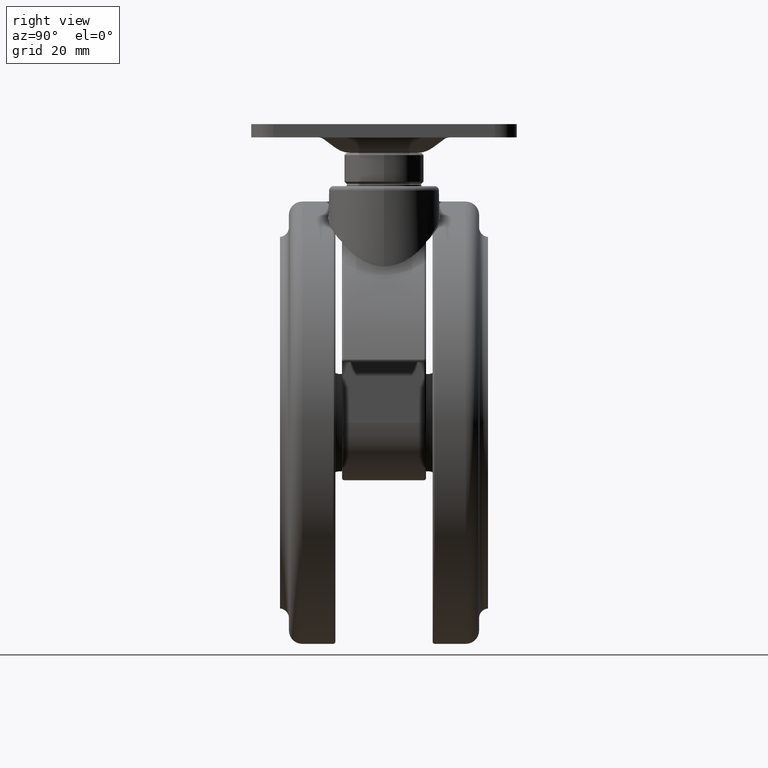
[diagram: clean part render]
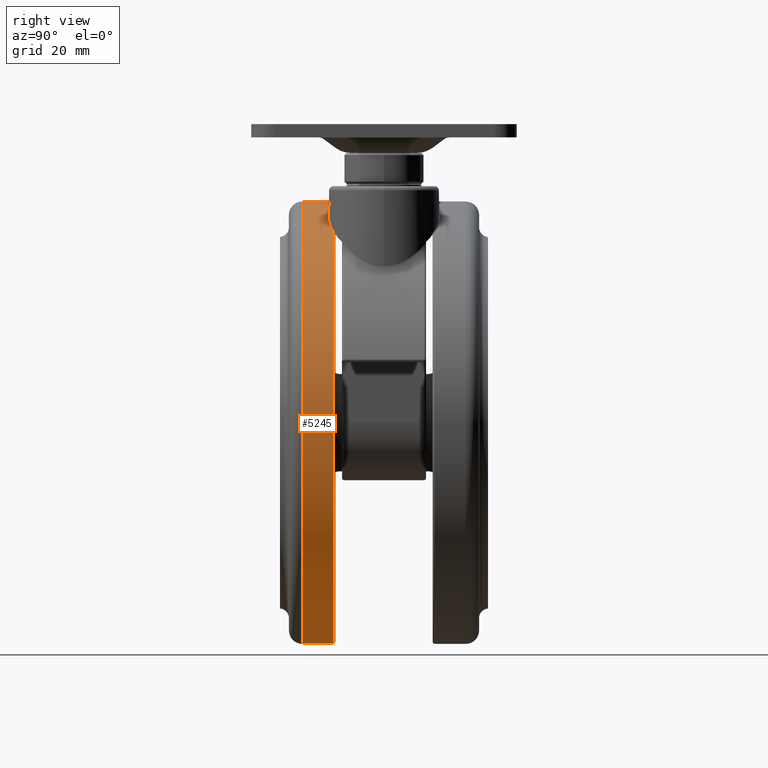
[diagram: same view with one face highlighted and labeled with its STEP entity id]
A machine part, right view. The second image highlights one B-rep face of the part: STEP entity #5245.
In plain terms, the highlighted cylindrical surface (partial cylindrical patch) has radius 50 mm, axis along (0, -1, 0).
Its self-contained STEP definition (entity closure, byte-faithful):
#23 = CARTESIAN_POINT ( 'NONE',  ( -24.00000000000000000, 0.0000000000000000000, -53.50000000000000000 ) ) ;
#36 = CARTESIAN_POINT ( 'NONE',  ( -24.00000000000000000, -11.50000000000016000, -103.5000000000000100 ) ) ;
#397 = VERTEX_POINT ( 'NONE', #2512 ) ;
#405 = AXIS2_PLACEMENT_3D ( 'NONE', #23, #2513, #4556 ) ;
#470 = EDGE_LOOP ( 'NONE', ( #3802, #2188, #5053, #704 ) ) ;
#660 = AXIS2_PLACEMENT_3D ( 'NONE', #803, #3690, #1203 ) ;
#704 = ORIENTED_EDGE ( 'NONE', *, *, #5041, .F. ) ;
#803 = CARTESIAN_POINT ( 'NONE',  ( -24.00000000000000000, -11.50000000000016000, -53.50000000000000000 ) ) ;
#892 = EDGE_CURVE ( 'NONE', #5032, #5099, #4448, .T. ) ;
#1008 = VERTEX_POINT ( 'NONE', #36 ) ;
#1203 = DIRECTION ( 'NONE',  ( 0.0000000000000000000, 0.0000000000000000000, -1.000000000000000000 ) ) ;
#1274 = LINE ( 'NONE', #1507, #1398 ) ;
#1398 = VECTOR ( 'NONE', #4811, 1000.000000000000000 ) ;
#1507 = CARTESIAN_POINT ( 'NONE',  ( -23.99999999999999300, 0.0000000000000000000, -3.499999999999996000 ) ) ;
#1548 = EDGE_CURVE ( 'NONE', #397, #5099, #1274, .T. ) ;
#1638 = VECTOR ( 'NONE', #2928, 1000.000000000000000 ) ;
#1827 = DIRECTION ( 'NONE',  ( 0.0000000000000000000, 0.0000000000000000000, -1.000000000000000000 ) ) ;
#2188 = ORIENTED_EDGE ( 'NONE', *, *, #1548, .T. ) ;
#2512 = CARTESIAN_POINT ( 'NONE',  ( -23.99999999999999300, -11.50000000000016000, -3.499999999999996000 ) ) ;
#2513 = DIRECTION ( 'NONE',  ( 0.0000000000000000000, -1.000000000000000000, 0.0000000000000000000 ) ) ;
#2543 = CYLINDRICAL_SURFACE ( 'NONE', #405, 50.00000000000000700 ) ;
#2749 = LINE ( 'NONE', #4979, #1638 ) ;
#2928 = DIRECTION ( 'NONE',  ( 0.0000000000000000000, -1.000000000000000000, 0.0000000000000000000 ) ) ;
#3228 = AXIS2_PLACEMENT_3D ( 'NONE', #3581, #4277, #1827 ) ;
#3581 = CARTESIAN_POINT ( 'NONE',  ( -24.00000000000000000, -18.50000000000000000, -53.50000000000000000 ) ) ;
#3662 = EDGE_CURVE ( 'NONE', #1008, #397, #4346, .T. ) ;
#3690 = DIRECTION ( 'NONE',  ( 0.0000000000000000000, -1.000000000000000000, 0.0000000000000000000 ) ) ;
#3731 = CARTESIAN_POINT ( 'NONE',  ( -24.00000000000000000, -18.50000000000000000, -103.5000000000000100 ) ) ;
#3802 = ORIENTED_EDGE ( 'NONE', *, *, #3662, .T. ) ;
#4277 = DIRECTION ( 'NONE',  ( 0.0000000000000000000, -1.000000000000000000, 0.0000000000000000000 ) ) ;
#4346 = CIRCLE ( 'NONE', #660, 50.00000000000000700 ) ;
#4448 = CIRCLE ( 'NONE', #3228, 50.00000000000000700 ) ;
#4556 = DIRECTION ( 'NONE',  ( 0.0000000000000000000, 0.0000000000000000000, -1.000000000000000000 ) ) ;
#4811 = DIRECTION ( 'NONE',  ( 0.0000000000000000000, -1.000000000000000000, 0.0000000000000000000 ) ) ;
#4979 = CARTESIAN_POINT ( 'NONE',  ( -24.00000000000000000, 0.0000000000000000000, -103.5000000000000100 ) ) ;
#4997 = FACE_OUTER_BOUND ( 'NONE', #470, .T. ) ;
#5024 = CARTESIAN_POINT ( 'NONE',  ( -23.99999999999999300, -18.50000000000000000, -3.499999999999997300 ) ) ;
#5032 = VERTEX_POINT ( 'NONE', #3731 ) ;
#5041 = EDGE_CURVE ( 'NONE', #1008, #5032, #2749, .T. ) ;
#5053 = ORIENTED_EDGE ( 'NONE', *, *, #892, .F. ) ;
#5099 = VERTEX_POINT ( 'NONE', #5024 ) ;
#5245 = ADVANCED_FACE ( 'NONE', ( #4997 ), #2543, .T. ) ;